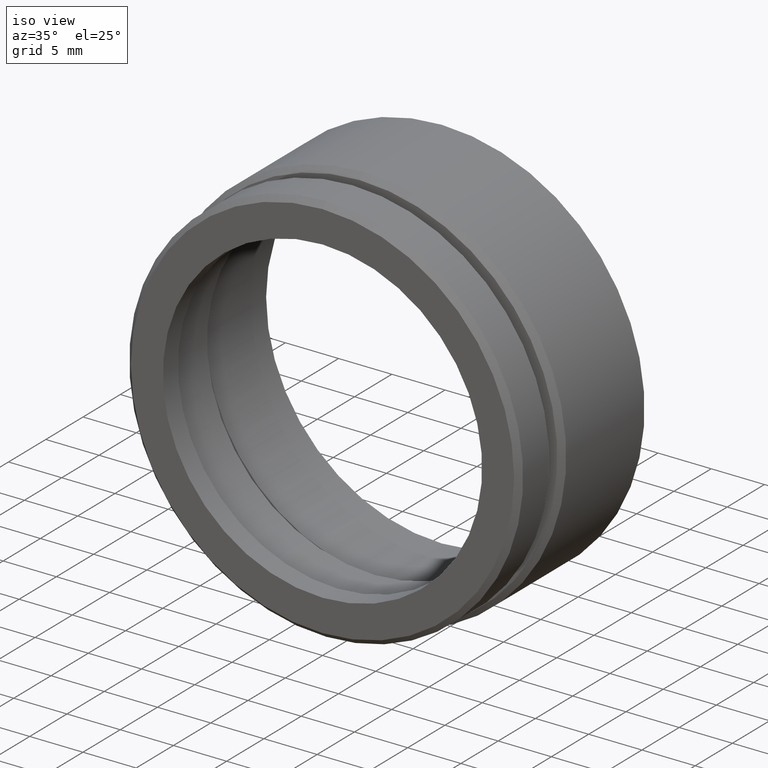
[diagram: clean part render]
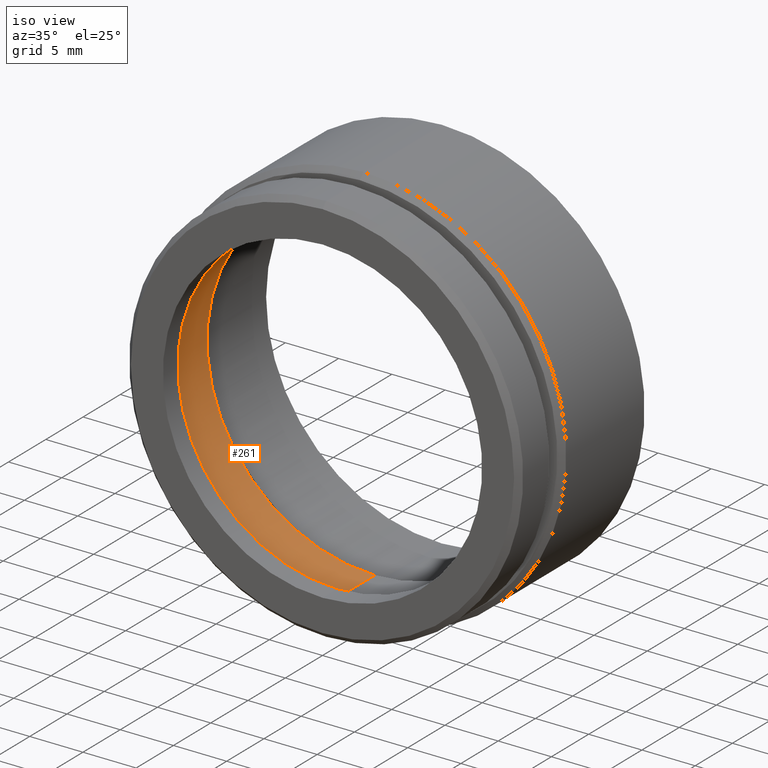
[diagram: same view with one face highlighted and labeled with its STEP entity id]
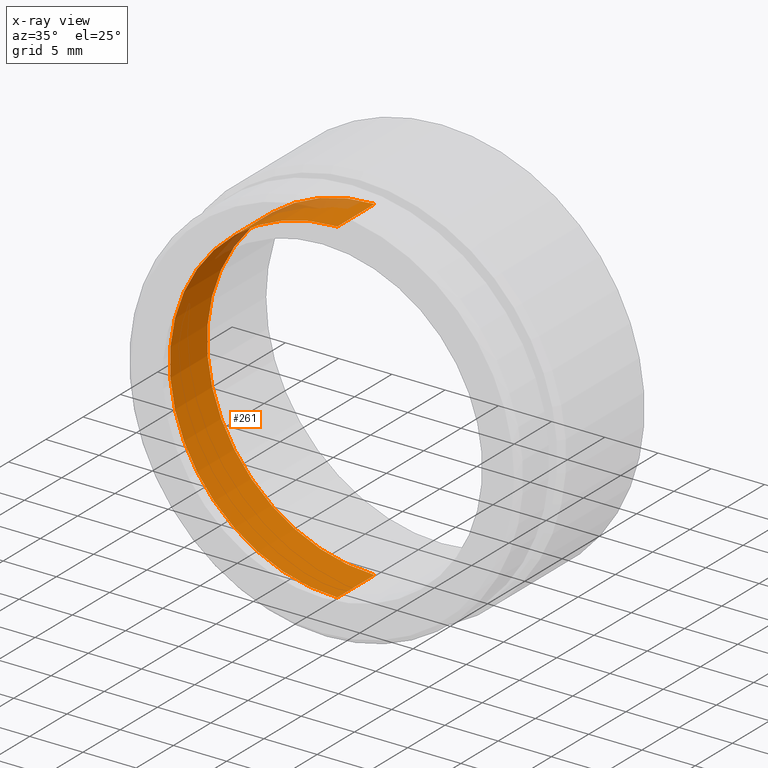
[diagram: x-ray of the same camera — body ghosted, the highlighted face saturated]
A machine part, iso view. The second image highlights one B-rep face of the part: STEP entity #261.
The next image is the same camera in x-ray: the body ghosted, the highlighted face saturated — about 5% of this face is hidden behind the body in this view.
In plain terms, the highlighted cylindrical surface (partial cylindrical patch) has radius 15.75 mm, axis along (-0, -1, -0).
Its self-contained STEP definition (entity closure, byte-faithful):
#9 = ORIENTED_EDGE ( 'NONE', *, *, #567, .T. ) ;
#52 = LINE ( 'NONE', #441, #268 ) ;
#67 = DIRECTION ( 'NONE',  ( -0.0000000000000000000, -1.000000000000000000, -0.0000000000000000000 ) ) ;
#104 = CIRCLE ( 'NONE', #317, 15.75000000000000000 ) ;
#120 = CARTESIAN_POINT ( 'NONE',  ( 1.928818708657081700E-015, 7.000000000000000000, 15.75000000000000400 ) ) ;
#124 = AXIS2_PLACEMENT_3D ( 'NONE', #258, #319, #318 ) ;
#203 = CARTESIAN_POINT ( 'NONE',  ( 0.0000000000000000000, 2.000000000000000000, -15.75000000000000000 ) ) ;
#247 = CARTESIAN_POINT ( 'NONE',  ( 1.928818708657081300E-015, 0.0000000000000000000, 15.75000000000000000 ) ) ;
#249 = DIRECTION ( 'NONE',  ( -0.0000000000000000000, -1.000000000000000000, -0.0000000000000000000 ) ) ;
#258 = CARTESIAN_POINT ( 'NONE',  ( 0.0000000000000000000, 0.0000000000000000000, 0.0000000000000000000 ) ) ;
#261 = ADVANCED_FACE ( 'NONE', ( #582 ), #278, .F. ) ;
#268 = VECTOR ( 'NONE', #67, 1000.000000000000000 ) ;
#278 = CYLINDRICAL_SURFACE ( 'NONE', #124, 15.75000000000000000 ) ;
#317 = AXIS2_PLACEMENT_3D ( 'NONE', #436, #437, #419 ) ;
#318 = DIRECTION ( 'NONE',  ( 0.0000000000000000000, 0.0000000000000000000, -1.000000000000000000 ) ) ;
#319 = DIRECTION ( 'NONE',  ( -0.0000000000000000000, -1.000000000000000000, -0.0000000000000000000 ) ) ;
#364 = EDGE_CURVE ( 'NONE', #694, #570, #725, .T. ) ;
#390 = CARTESIAN_POINT ( 'NONE',  ( 0.0000000000000000000, 7.000000000000000000, -15.75000000000000400 ) ) ;
#419 = DIRECTION ( 'NONE',  ( 0.0000000000000000000, 0.0000000000000000000, -1.000000000000000000 ) ) ;
#436 = CARTESIAN_POINT ( 'NONE',  ( 0.0000000000000000000, 2.000000000000000000, 0.0000000000000000000 ) ) ;
#437 = DIRECTION ( 'NONE',  ( -0.0000000000000000000, -1.000000000000000000, -0.0000000000000000000 ) ) ;
#441 = CARTESIAN_POINT ( 'NONE',  ( 0.0000000000000000000, 0.0000000000000000000, -15.75000000000000000 ) ) ;
#443 = VECTOR ( 'NONE', #249, 1000.000000000000000 ) ;
#528 = AXIS2_PLACEMENT_3D ( 'NONE', #794, #788, #783 ) ;
#559 = ORIENTED_EDGE ( 'NONE', *, *, #364, .F. ) ;
#567 = EDGE_CURVE ( 'NONE', #694, #837, #784, .T. ) ;
#570 = VERTEX_POINT ( 'NONE', #390 ) ;
#582 = FACE_OUTER_BOUND ( 'NONE', #610, .T. ) ;
#588 = CARTESIAN_POINT ( 'NONE',  ( 1.928818708657081300E-015, 2.000000000000000000, 15.75000000000000000 ) ) ;
#610 = EDGE_LOOP ( 'NONE', ( #559, #9, #667, #835 ) ) ;
#616 = EDGE_CURVE ( 'NONE', #837, #702, #104, .T. ) ;
#637 = EDGE_CURVE ( 'NONE', #570, #702, #52, .T. ) ;
#667 = ORIENTED_EDGE ( 'NONE', *, *, #616, .T. ) ;
#694 = VERTEX_POINT ( 'NONE', #120 ) ;
#702 = VERTEX_POINT ( 'NONE', #203 ) ;
#725 = CIRCLE ( 'NONE', #528, 15.75000000000000400 ) ;
#783 = DIRECTION ( 'NONE',  ( 0.0000000000000000000, 0.0000000000000000000, -1.000000000000000000 ) ) ;
#784 = LINE ( 'NONE', #247, #443 ) ;
#788 = DIRECTION ( 'NONE',  ( -0.0000000000000000000, -1.000000000000000000, -0.0000000000000000000 ) ) ;
#794 = CARTESIAN_POINT ( 'NONE',  ( 0.0000000000000000000, 7.000000000000000000, 0.0000000000000000000 ) ) ;
#835 = ORIENTED_EDGE ( 'NONE', *, *, #637, .F. ) ;
#837 = VERTEX_POINT ( 'NONE', #588 ) ;